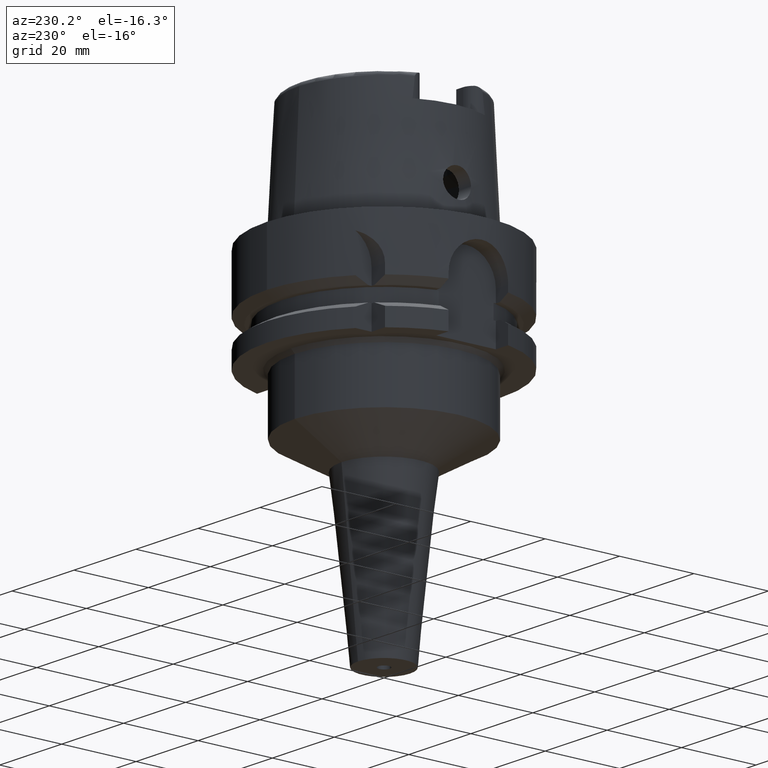
[diagram: clean part render]
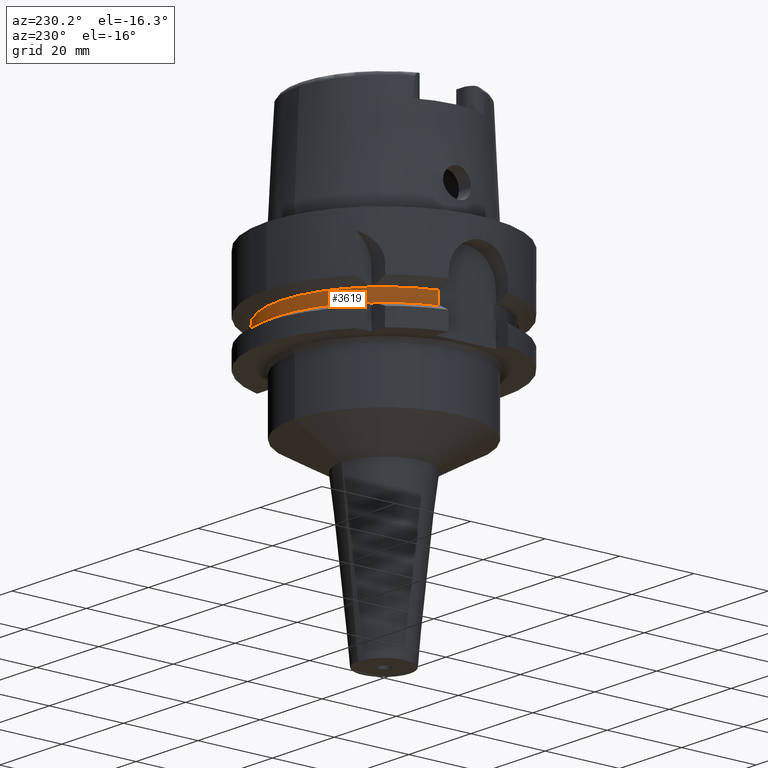
[diagram: same view with one face highlighted and labeled with its STEP entity id]
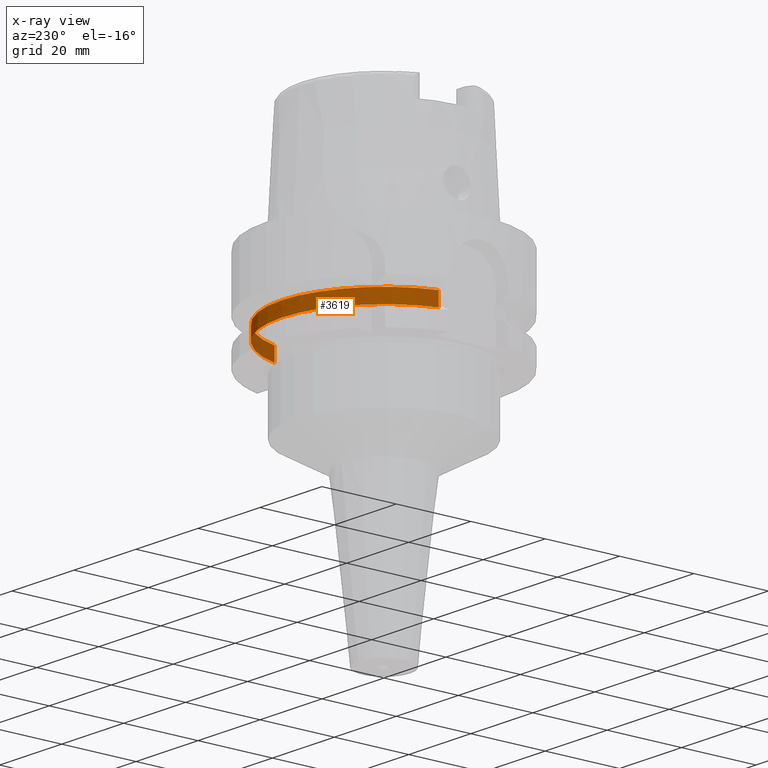
[diagram: x-ray of the same camera — body ghosted, the highlighted face saturated]
A machine part, auxiliary view. The second image highlights one B-rep face of the part: STEP entity #3619.
The next image is the same camera in x-ray: the body ghosted, the highlighted face saturated — about 11% of this face is hidden behind the body in this view.
In plain terms, the highlighted cylindrical surface (partial cylindrical patch) has radius 27.5 mm, axis along (0, 0, -1).
Its self-contained STEP definition (entity closure, byte-faithful):
#749=CARTESIAN_POINT('',(0.E0,1.691237229622E-14,-1.6125E1));
#750=DIRECTION('',(0.E0,0.E0,-1.E0));
#751=DIRECTION('',(-9.636363636364E-1,2.672170628491E-1,0.E0));
#752=AXIS2_PLACEMENT_3D('',#749,#750,#751);
#757=CARTESIAN_POINT('',(0.E0,1.691237229622E-14,-1.6125E1));
#758=DIRECTION('',(0.E0,0.E0,-1.E0));
#759=DIRECTION('',(0.E0,1.E0,0.E0));
#760=AXIS2_PLACEMENT_3D('',#757,#758,#759);
#1461=DIRECTION('',(0.E0,0.E0,-1.E0));
#1462=VECTOR('',#1461,3.75E0);
#1463=CARTESIAN_POINT('',(-2.65E1,7.348469228350E0,-1.6125E1));
#1464=LINE('',#1463,#1462);
#1468=DIRECTION('',(0.E0,0.E0,1.E0));
#1469=VECTOR('',#1468,3.75E0);
#1470=CARTESIAN_POINT('',(2.65E1,7.348469228350E0,-1.9875E1));
#1471=LINE('',#1470,#1469);
#1498=CARTESIAN_POINT('',(0.E0,1.691237229622E-14,-1.9875E1));
#1499=DIRECTION('',(0.E0,0.E0,1.E0));
#1500=DIRECTION('',(9.636363636364E-1,2.672170628491E-1,0.E0));
#1501=AXIS2_PLACEMENT_3D('',#1498,#1499,#1500);
#1506=CARTESIAN_POINT('',(0.E0,1.691237229622E-14,-1.9875E1));
#1507=DIRECTION('',(0.E0,0.E0,1.E0));
#1508=DIRECTION('',(0.E0,1.E0,0.E0));
#1509=AXIS2_PLACEMENT_3D('',#1506,#1507,#1508);
#2588=CARTESIAN_POINT('',(2.65E1,7.348469228350E0,-1.9875E1));
#2589=VERTEX_POINT('',#2588);
#2590=CARTESIAN_POINT('',(0.E0,2.75E1,-1.9875E1));
#2591=CARTESIAN_POINT('',(-2.65E1,7.348469228350E0,-1.9875E1));
#2592=VERTEX_POINT('',#2590);
#2593=VERTEX_POINT('',#2591);
#2598=CARTESIAN_POINT('',(-2.65E1,7.348469228350E0,-1.6125E1));
#2599=VERTEX_POINT('',#2598);
#2647=CARTESIAN_POINT('',(2.65E1,7.348469228350E0,-1.6125E1));
#2648=VERTEX_POINT('',#2647);
#2651=CARTESIAN_POINT('',(-1.243449787580E-14,2.75E1,-1.6125E1));
#2652=VERTEX_POINT('',#2651);
#3604=CARTESIAN_POINT('',(0.E0,1.691237229622E-14,3.81E1));
#3605=DIRECTION('',(0.E0,0.E0,-1.E0));
#3606=DIRECTION('',(0.E0,-1.E0,0.E0));
#3607=AXIS2_PLACEMENT_3D('',#3604,#3605,#3606);
#3608=CYLINDRICAL_SURFACE('',#3607,2.75E1);
#3609=ORIENTED_EDGE('',*,*,#3249,.T.);
#3611=ORIENTED_EDGE('',*,*,#3610,.F.);
#3613=ORIENTED_EDGE('',*,*,#3612,.F.);
#3614=ORIENTED_EDGE('',*,*,#3379,.T.);
#3615=ORIENTED_EDGE('',*,*,#3116,.F.);
#3616=ORIENTED_EDGE('',*,*,#3114,.F.);
#3617=EDGE_LOOP('',(#3609,#3611,#3613,#3614,#3615,#3616));
#3618=FACE_OUTER_BOUND('',#3617,.F.);
#753=CIRCLE('',#752,2.75E1);
#761=CIRCLE('',#760,2.75E1);
#1502=CIRCLE('',#1501,2.75E1);
#1510=CIRCLE('',#1509,2.75E1);
#3114=EDGE_CURVE('',#2599,#2652,#753,.T.);
#3116=EDGE_CURVE('',#2652,#2648,#761,.T.);
#3249=EDGE_CURVE('',#2599,#2593,#1464,.T.);
#3379=EDGE_CURVE('',#2589,#2648,#1471,.T.);
#3610=EDGE_CURVE('',#2592,#2593,#1510,.T.);
#3612=EDGE_CURVE('',#2589,#2592,#1502,.T.);
#3619=ADVANCED_FACE('',(#3618),#3608,.T.);